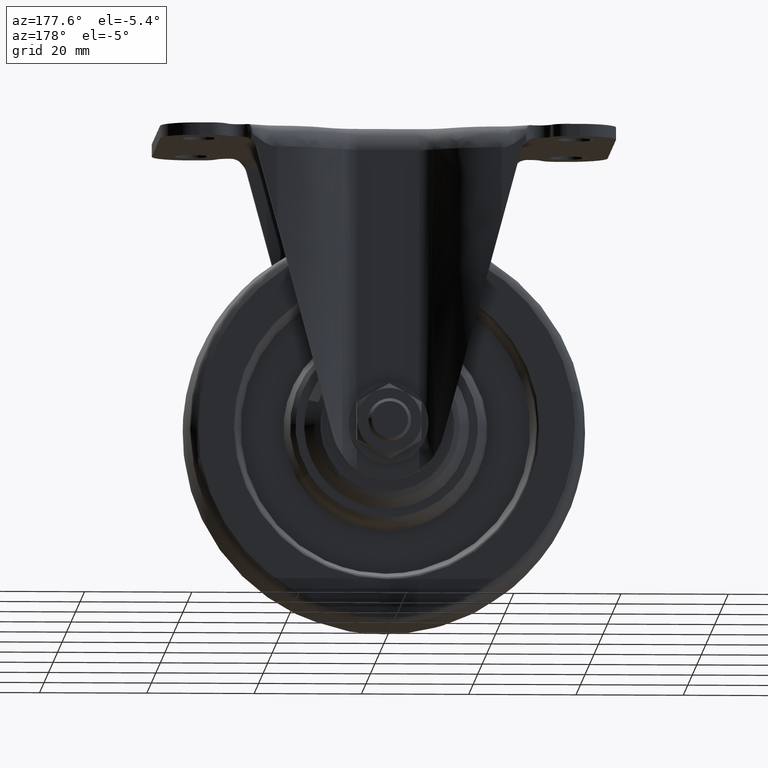
[diagram: clean part render]
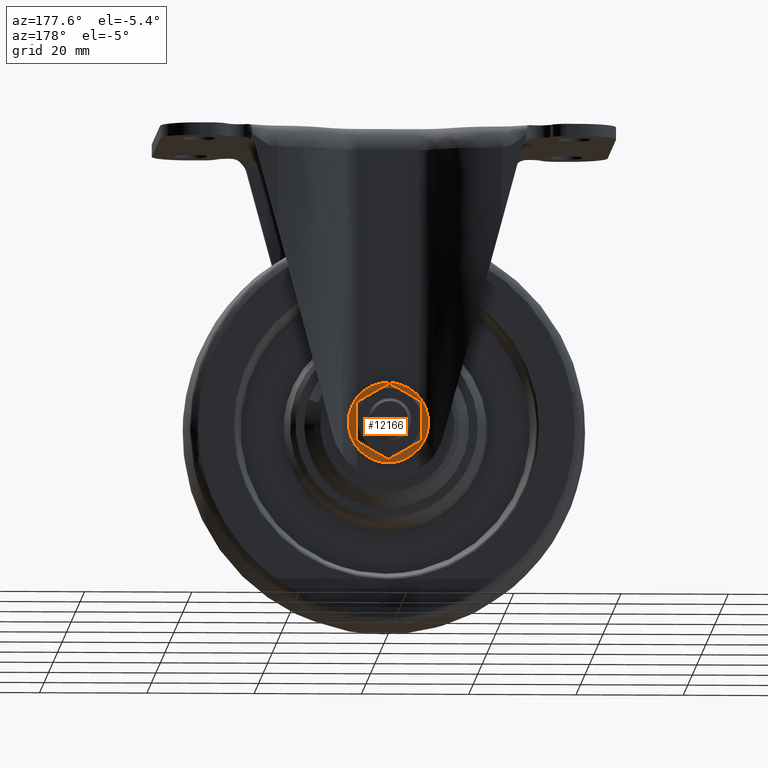
[diagram: same view with one face highlighted and labeled with its STEP entity id]
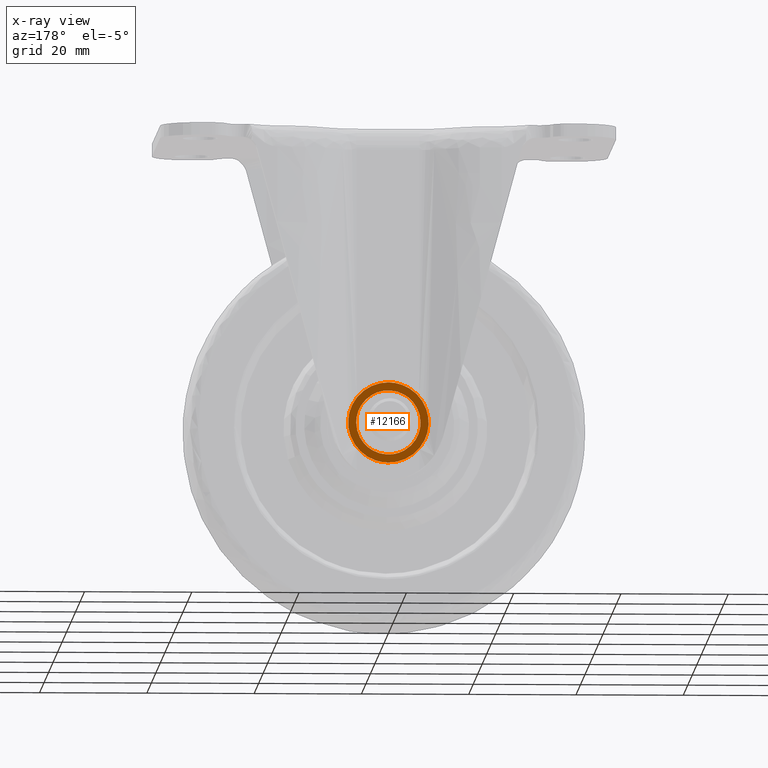
[diagram: x-ray of the same camera — body ghosted, the highlighted face saturated]
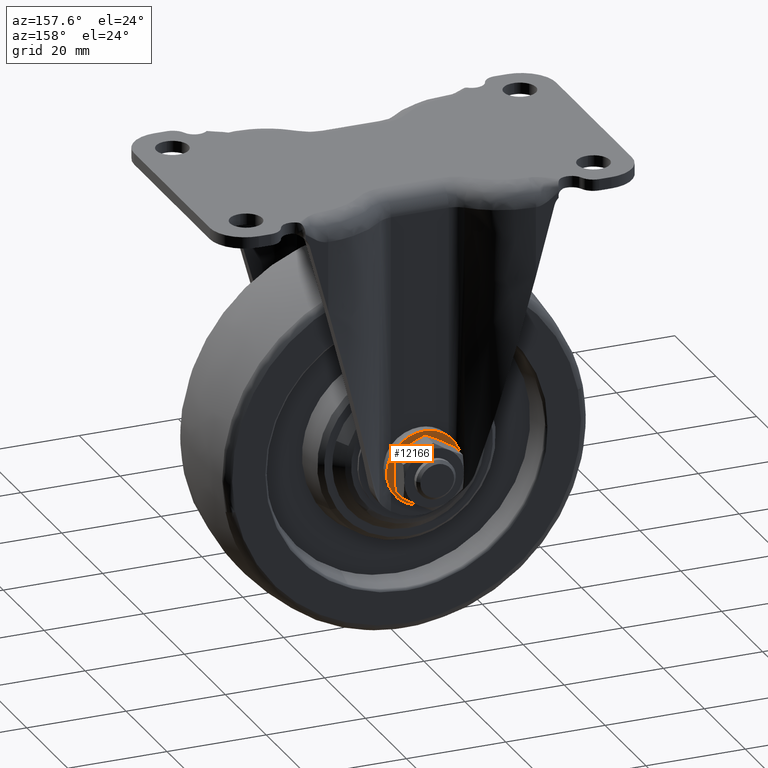
[diagram: same view with one face highlighted and labeled with its STEP entity id]
A machine part, auxiliary view. The second image highlights one B-rep face of the part: STEP entity #12166.
The next image is the same camera in x-ray: the body ghosted, the highlighted face saturated — about 0% of this face is hidden behind the body in this view.
A second angle (auxiliary view) of the same face is appended — the face is thin or edge-on in the first view.
In plain terms, the highlighted face is a freeform B-spline surface patch.
Its self-contained STEP definition (entity closure, byte-faithful):
#11209=CARTESIAN_POINT('',(-7.486010988157794,20.0,-55.957864046611597));
#11210=VERTEX_POINT('',#11209);
#11216=CARTESIAN_POINT('',(0.0,20.0,-62.999999999999922));
#11217=VERTEX_POINT('',#11216);
#11218=CARTESIAN_POINT('',(0.0,20.0,-62.999999999999922));
#11219=CARTESIAN_POINT('',(-7.055295501698043,20.0,-62.999999999999908));
#11220=CARTESIAN_POINT('',(-7.486010988157795,20.0,-55.957864046611604));
#11228=(BOUNDED_CURVE()B_SPLINE_CURVE(2,(#11218,#11219,#11220),.UNSPECIFIED.,.F.,.U.)B_SPLINE_CURVE_WITH_KNOTS((3,3),(0.500000000000000,0.739332962239659),.UNSPECIFIED.)CURVE()GEOMETRIC_REPRESENTATION_ITEM()RATIONAL_B_SPLINE_CURVE((1.0,0.719603993285871,0.976072041668253))REPRESENTATION_ITEM(''));
#11229=EDGE_CURVE('',#11217,#11210,#11228,.T.);
#11231=CARTESIAN_POINT('',(7.486010988157794,20.0,-55.042135953388403));
#11232=VERTEX_POINT('',#11231);
#11233=CARTESIAN_POINT('',(7.486010988157794,20.000000000000004,-55.042135953388389));
#11234=CARTESIAN_POINT('',(7.499999999999920,20.000000000000007,-55.270854275210361));
#11235=CARTESIAN_POINT('',(7.499999999999920,20.0,-55.500000000000000));
#11236=CARTESIAN_POINT('',(7.499999999999921,19.999999999999996,-62.999999999999922));
#11237=CARTESIAN_POINT('',(0.0,20.0,-62.999999999999922));
#11245=(BOUNDED_CURVE()B_SPLINE_CURVE(2,(#11233,#11234,#11235,#11236,#11237),.UNSPECIFIED.,.F.,.U.)B_SPLINE_CURVE_WITH_KNOTS((3,2,3),(0.239332962239659,0.250000000000000,0.500000000000000),.UNSPECIFIED.)CURVE()GEOMETRIC_REPRESENTATION_ITEM()RATIONAL_B_SPLINE_CURVE((0.976072041668252,0.987502787900676,1.0,0.707106781186548,1.0))REPRESENTATION_ITEM(''));
#11246=EDGE_CURVE('',#11232,#11217,#11245,.T.);
#11276=CARTESIAN_POINT('',(0.0,20.0,-48.000000000000092));
#11277=VERTEX_POINT('',#11276);
#11278=CARTESIAN_POINT('',(0.0,20.0,-48.000000000000092));
#11279=CARTESIAN_POINT('',(7.055295501698050,20.000000000000007,-48.000000000000092));
#11280=CARTESIAN_POINT('',(7.486010988157795,20.000000000000004,-55.042135953388403));
#11288=(BOUNDED_CURVE()B_SPLINE_CURVE(2,(#11278,#11279,#11280),.UNSPECIFIED.,.F.,.U.)B_SPLINE_CURVE_WITH_KNOTS((3,3),(0.0,0.239332962239659),.UNSPECIFIED.)CURVE()GEOMETRIC_REPRESENTATION_ITEM()RATIONAL_B_SPLINE_CURVE((1.0,0.719603993285871,0.976072041668253))REPRESENTATION_ITEM(''));
#11289=EDGE_CURVE('',#11277,#11232,#11288,.T.);
#11291=CARTESIAN_POINT('',(-7.486010988157795,20.0,-55.957864046611604));
#11292=CARTESIAN_POINT('',(-7.499999999999919,20.0,-55.729145724789639));
#11293=CARTESIAN_POINT('',(-7.499999999999920,20.0,-55.500000000000000));
#11294=CARTESIAN_POINT('',(-7.499999999999921,19.999999999999996,-48.000000000000085));
#11295=CARTESIAN_POINT('',(0.0,20.0,-48.000000000000092));
#11303=(BOUNDED_CURVE()B_SPLINE_CURVE(2,(#11291,#11292,#11293,#11294,#11295),.UNSPECIFIED.,.F.,.U.)B_SPLINE_CURVE_WITH_KNOTS((3,2,3),(0.739332962239659,0.750000000000000,1.0),.UNSPECIFIED.)CURVE()GEOMETRIC_REPRESENTATION_ITEM()RATIONAL_B_SPLINE_CURVE((0.976072041668253,0.987502787900677,1.0,0.707106781186548,1.0))REPRESENTATION_ITEM(''));
#11304=EDGE_CURVE('',#11210,#11277,#11303,.T.);
#11325=CARTESIAN_POINT('',(3.000000066937890,20.0,-60.696151961353401));
#11326=VERTEX_POINT('',#11325);
#11342=CARTESIAN_POINT('',(-3.000000066937980,20.0,-60.696151961353202));
#11343=VERTEX_POINT('',#11342);
#11344=CARTESIAN_POINT('',(3.000000066937890,20.0,-60.696151961353401));
#11345=CARTESIAN_POINT('',(-1.014813E-013,20.000000000000004,-62.428203422706609));
#11346=CARTESIAN_POINT('',(-3.000000249975392,20.0,-60.696152278383273));
#11354=(BOUNDED_CURVE()B_SPLINE_CURVE(2,(#11344,#11345,#11346),.UNSPECIFIED.,.F.,.U.)CURVE()GEOMETRIC_REPRESENTATION_ITEM()QUASI_UNIFORM_CURVE()RATIONAL_B_SPLINE_CURVE((1.0,0.866025379730551,1.0))REPRESENTATION_ITEM(''));
#11355=EDGE_CURVE('',#11326,#11343,#11354,.T.);
#11387=CARTESIAN_POINT('',(6.000000000000110,20.0,-55.500000000000000));
#11388=VERTEX_POINT('',#11387);
#11404=CARTESIAN_POINT('',(6.0,20.0,-55.500000000000000));
#11405=CARTESIAN_POINT('',(6.0,20.000000000000004,-58.964101422706726));
#11406=CARTESIAN_POINT('',(3.000000249975238,20.0,-60.696152278383352));
#11414=(BOUNDED_CURVE()B_SPLINE_CURVE(2,(#11404,#11405,#11406),.UNSPECIFIED.,.F.,.U.)CURVE()GEOMETRIC_REPRESENTATION_ITEM()QUASI_UNIFORM_CURVE()RATIONAL_B_SPLINE_CURVE((1.0,0.866025415811378,1.0))REPRESENTATION_ITEM(''));
#11415=EDGE_CURVE('',#11388,#11326,#11414,.T.);
#11447=CARTESIAN_POINT('',(3.000000499950655,20.0,-50.303847288646601));
#11448=VERTEX_POINT('',#11447);
#11464=CARTESIAN_POINT('',(3.000000499950655,20.0,-50.303847288646601));
#11465=CARTESIAN_POINT('',(6.000000000000001,20.0,-52.035898577293281));
#11466=CARTESIAN_POINT('',(6.0,20.0,-55.500000000000000));
#11474=(BOUNDED_CURVE()B_SPLINE_CURVE(2,(#11464,#11465,#11466),.UNSPECIFIED.,.F.,.U.)CURVE()GEOMETRIC_REPRESENTATION_ITEM()QUASI_UNIFORM_CURVE()RATIONAL_B_SPLINE_CURVE((1.0,0.866025415811378,1.0))REPRESENTATION_ITEM(''));
#11475=EDGE_CURVE('',#11448,#11388,#11474,.T.);
#11509=CARTESIAN_POINT('',(-3.000000499950735,20.0,-50.303847288646800));
#11510=VERTEX_POINT('',#11509);
#11526=CARTESIAN_POINT('',(-3.000000499950735,20.0,-50.303847288646800));
#11527=CARTESIAN_POINT('',(-1.010476E-013,20.0,-48.571796577293391));
#11528=CARTESIAN_POINT('',(3.000000249975248,20.0,-50.303847721616663));
#11536=(BOUNDED_CURVE()B_SPLINE_CURVE(2,(#11526,#11527,#11528),.UNSPECIFIED.,.F.,.U.)CURVE()GEOMETRIC_REPRESENTATION_ITEM()QUASI_UNIFORM_CURVE()RATIONAL_B_SPLINE_CURVE((1.0,0.866025379730550,1.0))REPRESENTATION_ITEM(''));
#11537=EDGE_CURVE('',#11510,#11448,#11536,.T.);
#11569=CARTESIAN_POINT('',(-5.999999999999770,20.0,-55.500000000000000));
#11570=VERTEX_POINT('',#11569);
#11588=CARTESIAN_POINT('',(-5.999999999999770,20.0,-55.500000000000000));
#11589=CARTESIAN_POINT('',(-6.0,20.0,-52.035898577293402));
#11590=CARTESIAN_POINT('',(-3.000000249975399,20.0,-50.303847721616741));
#11598=(BOUNDED_CURVE()B_SPLINE_CURVE(2,(#11588,#11589,#11590),.UNSPECIFIED.,.F.,.U.)CURVE()GEOMETRIC_REPRESENTATION_ITEM()QUASI_UNIFORM_CURVE()RATIONAL_B_SPLINE_CURVE((1.0,0.866025415811385,1.0))REPRESENTATION_ITEM(''));
#11599=EDGE_CURVE('',#11570,#11510,#11598,.T.);
#12135=CARTESIAN_POINT('',(-8.249065404818509,20.0,-63.749249970927004));
#12136=CARTESIAN_POINT('',(-8.249065404818509,20.0,-47.250749626741637));
#12137=CARTESIAN_POINT('',(8.249065136597613,20.0,-63.749249970927004));
#12138=CARTESIAN_POINT('',(8.249065136597613,20.0,-47.250749626741637));
#12139=B_SPLINE_SURFACE_WITH_KNOTS('',1,1,((#12135,#12137),(#12136,#12138)),.UNSPECIFIED.,.F.,.F.,.U.,(2,2),(2,2),(0.0,16.498500344185359),(0.0,16.498130541416121),.UNSPECIFIED.);
#12140=ORIENTED_EDGE('',*,*,#11289,.T.);
#12141=ORIENTED_EDGE('',*,*,#11246,.T.);
#12142=ORIENTED_EDGE('',*,*,#11229,.T.);
#12143=ORIENTED_EDGE('',*,*,#11304,.T.);
#12144=EDGE_LOOP('',(#12140,#12141,#12142,#12143));
#12145=FACE_OUTER_BOUND('',#12144,.T.);
#12146=CARTESIAN_POINT('',(-3.000000066937980,20.0,-60.696151961353202));
#12147=CARTESIAN_POINT('',(-6.000000000000001,19.999999999999996,-58.964101422706612));
#12148=CARTESIAN_POINT('',(-6.0,20.0,-55.500000000000000));
#12156=(BOUNDED_CURVE()B_SPLINE_CURVE(2,(#12146,#12147,#12148),.UNSPECIFIED.,.F.,.U.)CURVE()GEOMETRIC_REPRESENTATION_ITEM()QUASI_UNIFORM_CURVE()RATIONAL_B_SPLINE_CURVE((1.0,0.866025415811385,1.0))REPRESENTATION_ITEM(''));
#12157=EDGE_CURVE('',#11343,#11570,#12156,.T.);
#12158=ORIENTED_EDGE('',*,*,#12157,.F.);
#12159=ORIENTED_EDGE('',*,*,#11355,.F.);
#12160=ORIENTED_EDGE('',*,*,#11415,.F.);
#12161=ORIENTED_EDGE('',*,*,#11475,.F.);
#12162=ORIENTED_EDGE('',*,*,#11537,.F.);
#12163=ORIENTED_EDGE('',*,*,#11599,.F.);
#12164=EDGE_LOOP('',(#12158,#12159,#12160,#12161,#12162,#12163));
#12165=FACE_BOUND('',#12164,.T.);
#12166=ADVANCED_FACE('',(#12145,#12165),#12139,.T.);